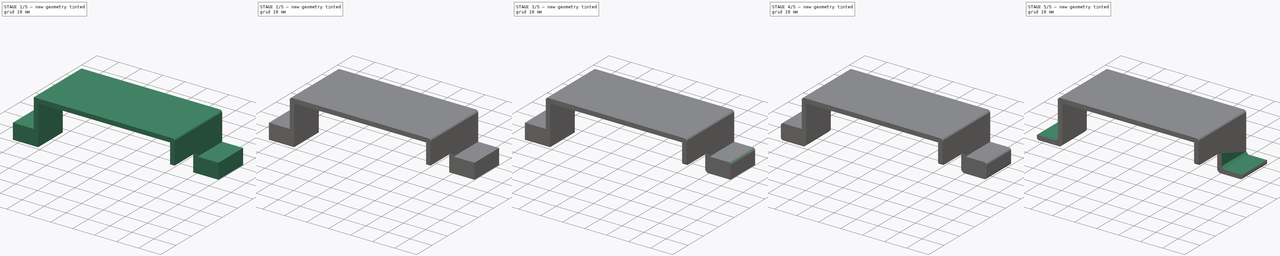
[diagram: build sequence overview — one tinted view per stage of 5, left to right]
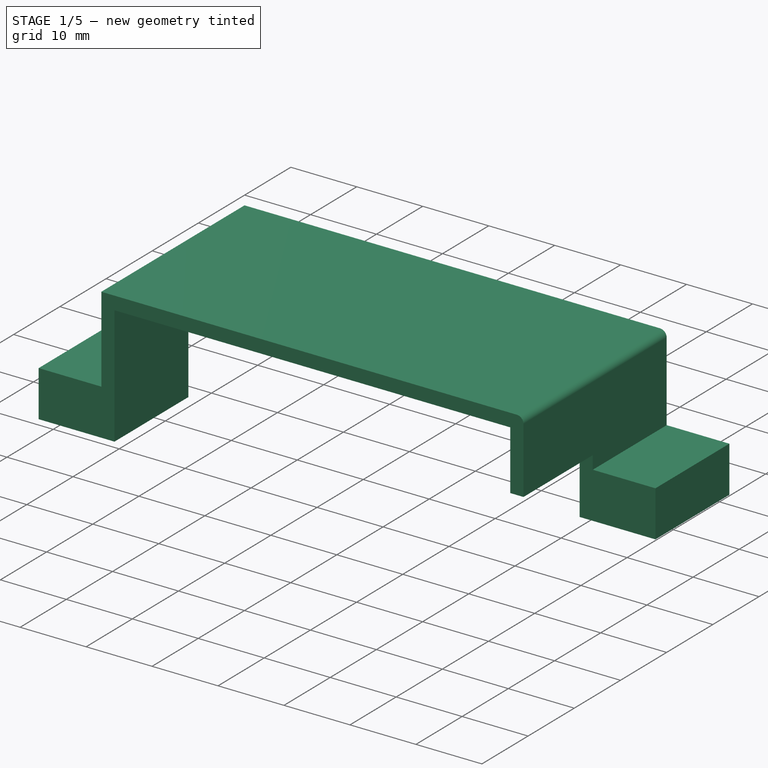
[diagram: stage 1 of 5 — iso view after this stage's code; geometry added in this stage tinted green]
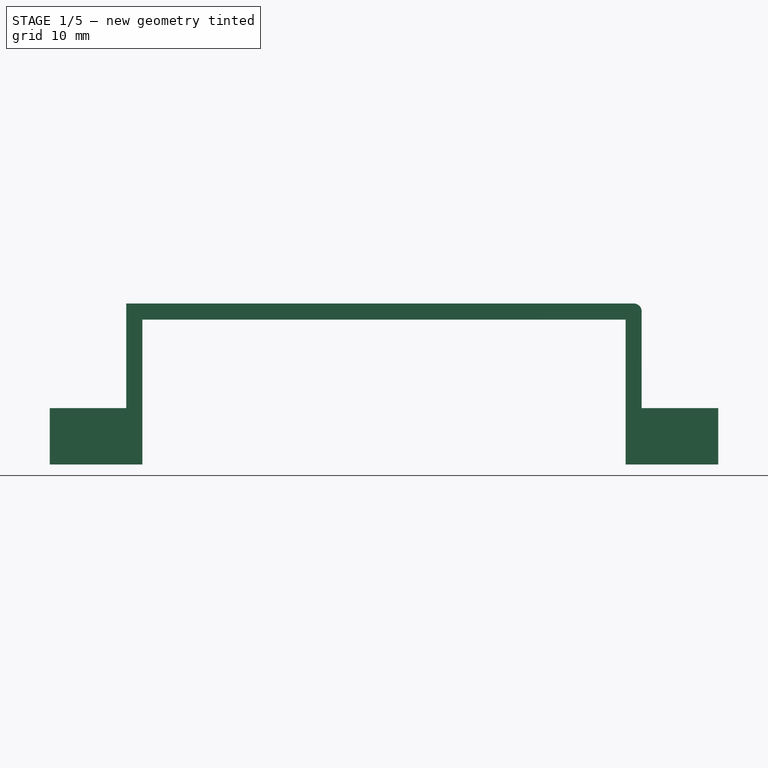
[diagram: stage 1 of 5 — front view after this stage's code; geometry added in this stage tinted green]
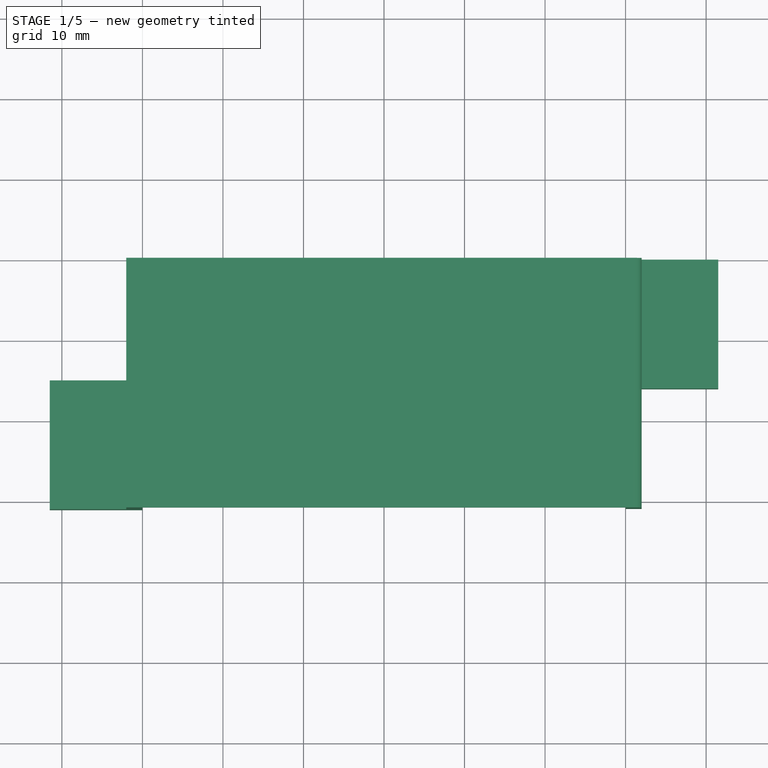
[diagram: stage 1 of 5 — top view after this stage's code; geometry added in this stage tinted green]
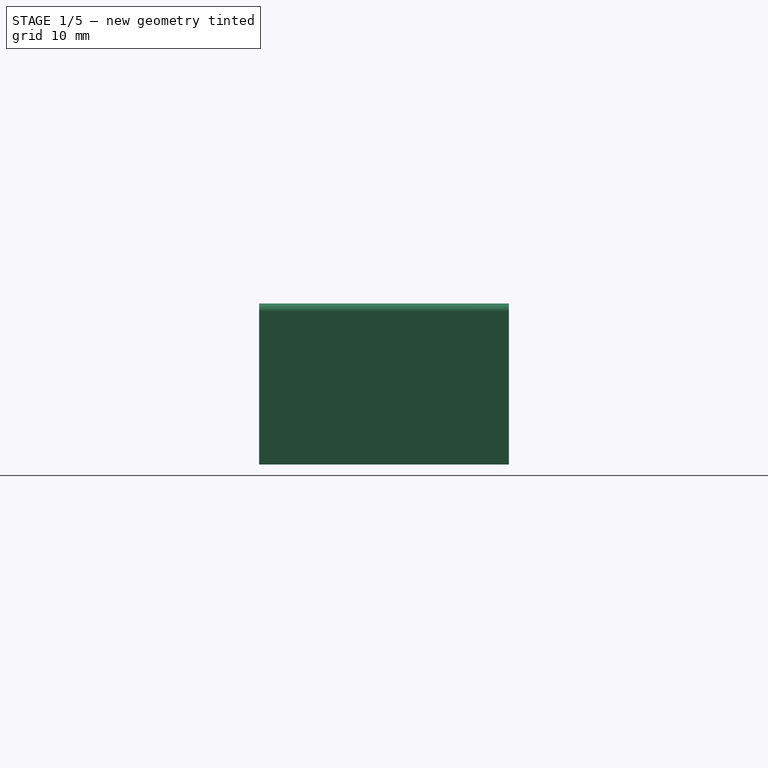
[diagram: stage 1 of 5 — right view after this stage's code; geometry added in this stage tinted green]
FCSTD DOCUMENT  (FreeCAD 1.0R39319 (Git))
Label: Couvercle Convertisseur (club robotique)
License: All rights reserved
LicenseURL: https://en.wikipedia.org/wiki/All_rights_reserved
objects: PartDesign::Fillet×10, Sketcher::SketchObject×5, PartDesign::Pocket×4, PartDesign::Chamfer×4, PartDesign::Pad×1, PartDesign::Body×1
note: 68 computed .brp shape members not serialized (recipe doc carries the construction recipe); baked Part::Feature solids carry a one-line shape summary decoded from their .brp

FEATURE [Sketcher::SketchObject] Sketch
  ArcFitTolerance = 1e-06
  AttachmentSupport = -> [XZ_Plane]
  FullyConstrained = true
  MakeInternals = false
  MapMode = 5
  Placement = pos=(0,0,0) rot=(1,0,0;1.5708rad)
  sketch-geometry (12):
    g0: LineSegment StartX=-32 StartY=20 StartZ=0 EndX=32 EndY=20 EndZ=0
    g1: LineSegment StartX=32 StartY=20 StartZ=0 EndX=32 EndY=7 EndZ=0
    g2: LineSegment StartX=32 StartY=7 StartZ=0 EndX=41.5 EndY=7 EndZ=0
    g3: LineSegment StartX=41.5 StartY=7 StartZ=0 EndX=41.5 EndY=0 EndZ=0
    g4: LineSegment StartX=41.5 StartY=0 StartZ=0 EndX=30 EndY=0 EndZ=0
    g5: LineSegment StartX=30 StartY=0 StartZ=0 EndX=30 EndY=18 EndZ=0
    g6: LineSegment StartX=30 StartY=18 StartZ=0 EndX=-30 EndY=18 EndZ=0
    g7: LineSegment StartX=-30 StartY=18 StartZ=0 EndX=-30 EndY=0 EndZ=0
    g8: LineSegment StartX=-30 StartY=0 StartZ=0 EndX=-41.5 EndY=0 EndZ=0
    g9: LineSegment StartX=-41.5 StartY=0 StartZ=0 EndX=-41.5 EndY=7 EndZ=0
    g10: LineSegment StartX=-41.5 StartY=7 StartZ=0 EndX=-32 EndY=7 EndZ=0
    g11: LineSegment StartX=-32 StartY=7 StartZ=0 EndX=-32 EndY=20 EndZ=0
  constraints (31):
    c: Coincident(g0,g1)
    c: Vertical(g1)
    c: Coincident(g1,g2)
    c: Horizontal(g2)
    c: Coincident(g2,g3)
    c: Vertical(g3)
    c: Coincident(g3,g4)
    c: Horizontal(g4)
    c: Coincident(g4,g5)
    c: Vertical(g5)
    c: Coincident(g5,g6)
    c: Coincident(g6,g7)
    c: PointOnObject(g7,g-1)
    c: Coincident(g7,g8)
    c: PointOnObject(g8,g-1)
    c: Coincident(g8,g9)
    c: Vertical(g9)
    c: Coincident(g9,g10)
    c: Coincident(g10,g11)
    c: Coincident(g11,g0)
    c: DistanceX(g6,g6) = 60
    c: Symmetric(g6,g5,g-2)
    c: Symmetric(g0,g0,g-2)
    c: Distance(g0,g6) = 2
    c: Distance(g1,g5) = 2
    c: DistanceY(g5,g5) = 18
    c: Symmetric(g7,g4,g-2)
    c: DistanceY(g1,g1) = 13
    c: Symmetric(g1,g10,g-2)
    c: Distance(g4,g4) = 11.5
    c: Symmetric(g2,g9,g-2)
FEATURE [PartDesign::Pad] Pad
  Direction = (0,-1,2e-16)
  Length = 31
  Length2 = 10
  Placement = pos=(0,0,0) rot=(1,0,0;1.5708rad)
  Profile = -> Sketch
  ReferenceAxis = -> Sketch [N_Axis]
  Refine = true
  Suppressed = false
  Type = 0
FEATURE [Sketcher::SketchObject] Sketch001
  ArcFitTolerance = 1e-06
  AttachmentSupport = -> [Pad]
  ExternalGeometry = -> [Pad]
  FullyConstrained = false
  MakeInternals = false
  MapMode = 5
  Placement = pos=(0,3e-15,0) rot=(-1,0,0;1.5708rad)
  sketch-geometry (5):
    g0: LineSegment [constr] StartX=-32 StartY=-7 StartZ=0 EndX=-30 EndY=-9 EndZ=0
    g1: LineSegment StartX=-30 StartY=-9 StartZ=0 EndX=-30 EndY=1.82453 EndZ=0
    g2: LineSegment StartX=-30 StartY=1.82453 StartZ=0 EndX=-43.1349 EndY=1.82453 EndZ=0
    g3: LineSegment StartX=-43.1349 StartY=1.82453 StartZ=0 EndX=-43.1349 EndY=-9 EndZ=0
    g4: LineSegment StartX=-43.1349 StartY=-9 StartZ=0 EndX=-30 EndY=-9 EndZ=0
  constraints (11):
    c: Coincident(g0,g-7)
    c: Symmetric(g-6,g-6,g0)
    c: Coincident(g1,g2)
    c: Coincident(g2,g3)
    c: Coincident(g3,g4)
    c: Coincident(g4,g1)
    c: Vertical(g1)
    c: Vertical(g3)
    c: Horizontal(g2)
    c: Horizontal(g4)
    c: Coincident(g1,g0)
FEATURE [PartDesign::Pocket] Pocket
  BaseFeature = -> Pad
  Direction = (0,-1,-2e-16)
  Length = 15
  Length2 = 5
  Placement = pos=(0,0,0) rot=(1,0,0;1.5708rad)
  Profile = -> Sketch001
  ReferenceAxis = -> Sketch001 [N_Axis]
  Refine = true
  Suppressed = false
  Type = 0
FEATURE [Sketcher::SketchObject] Sketch002
  ArcFitTolerance = 1e-06
  AttachmentSupport = -> [Pocket]
  ExternalGeometry = -> [Pocket]
  FullyConstrained = false
  MakeInternals = false
  MapMode = 5
  Placement = pos=(0,-31,0) rot=(1,0,0;1.5708rad)
  sketch-geometry (5):
    g0: LineSegment [constr] StartX=32 StartY=7 StartZ=0 EndX=30 EndY=9 EndZ=0
    g1: LineSegment StartX=30 StartY=9 StartZ=0 EndX=30 EndY=-1.46496 EndZ=0
    g2: LineSegment StartX=30 StartY=-1.46496 StartZ=0 EndX=43.3128 EndY=-1.46496 EndZ=0
    g3: LineSegment StartX=43.3128 StartY=-1.46496 StartZ=0 EndX=43.3128 EndY=9 EndZ=0
    g4: LineSegment StartX=43.3128 StartY=9 StartZ=0 EndX=30 EndY=9 EndZ=0
  constraints (11):
    c: Coincident(g0,g-7)
    c: Symmetric(g-6,g-6,g0)
    c: Coincident(g1,g2)
    c: Coincident(g2,g3)
    c: Coincident(g3,g4)
    c: Coincident(g4,g1)
    c: Vertical(g1)
    c: Vertical(g3)
    c: Horizontal(g2)
    c: Horizontal(g4)
    c: Coincident(g1,g0)
FEATURE [PartDesign::Pocket] Pocket001
  BaseFeature = -> Pocket
  Direction = (0,1,-2e-16)
  Length = 15
  Length2 = 5
  Placement = pos=(0,0,0) rot=(1,0,0;1.5708rad)
  Profile = -> Sketch002
  ReferenceAxis = -> Sketch002 [N_Axis]
  Refine = true
  Suppressed = false
  Type = 0
FEATURE [PartDesign::Fillet] Fillet
  Base = -> Pocket001 [Edge2]
  BaseFeature = -> Pocket001
  Placement = pos=(0,0,0) rot=(1,0,0;1.5708rad)
  Radius = 1
  Refine = true
  SupportTransform = false
  Suppressed = false
  UseAllEdges = false
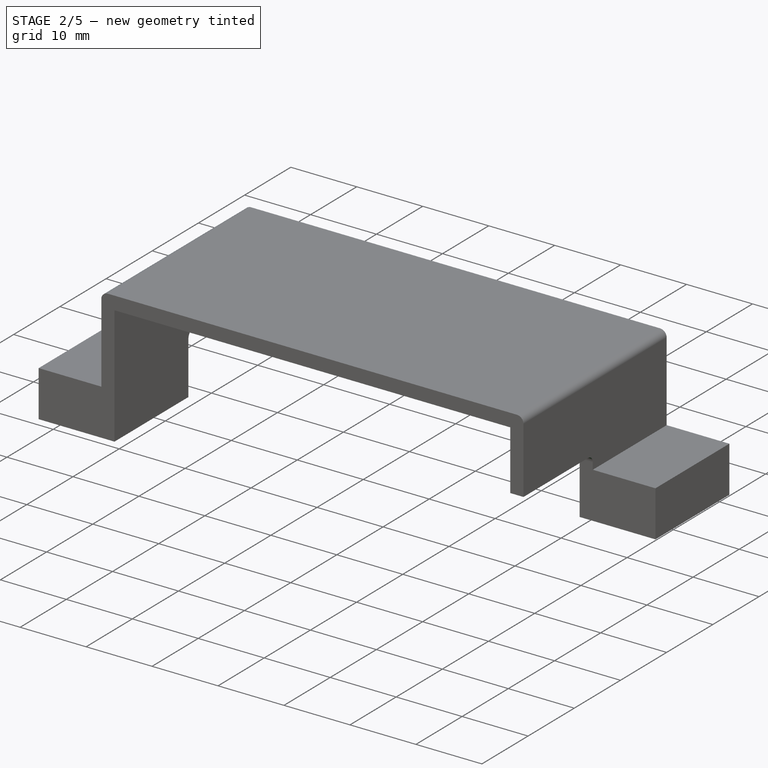
[diagram: stage 2 of 5 — iso view after this stage's code; geometry added in this stage tinted green]
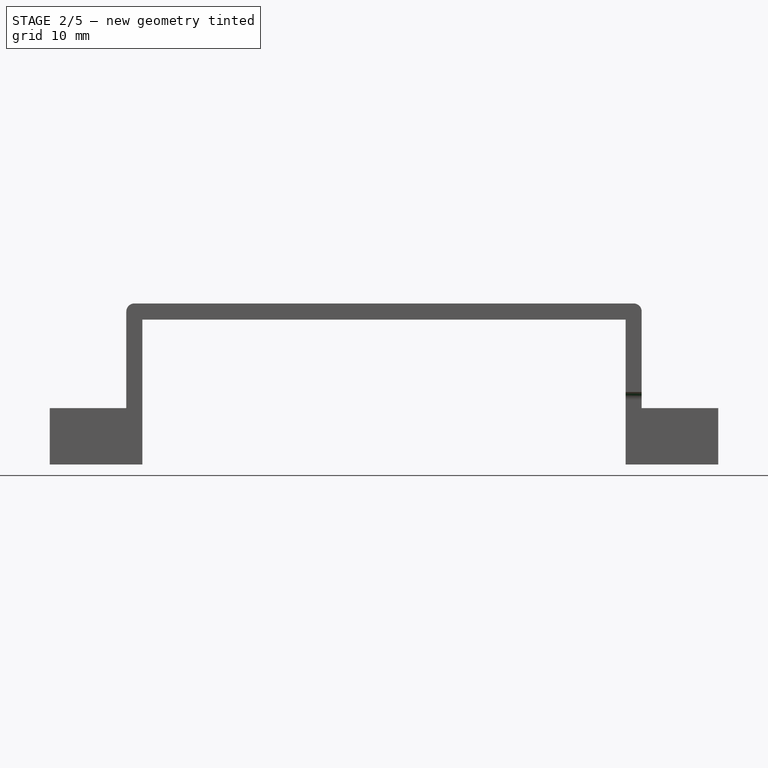
[diagram: stage 2 of 5 — front view after this stage's code; geometry added in this stage tinted green]
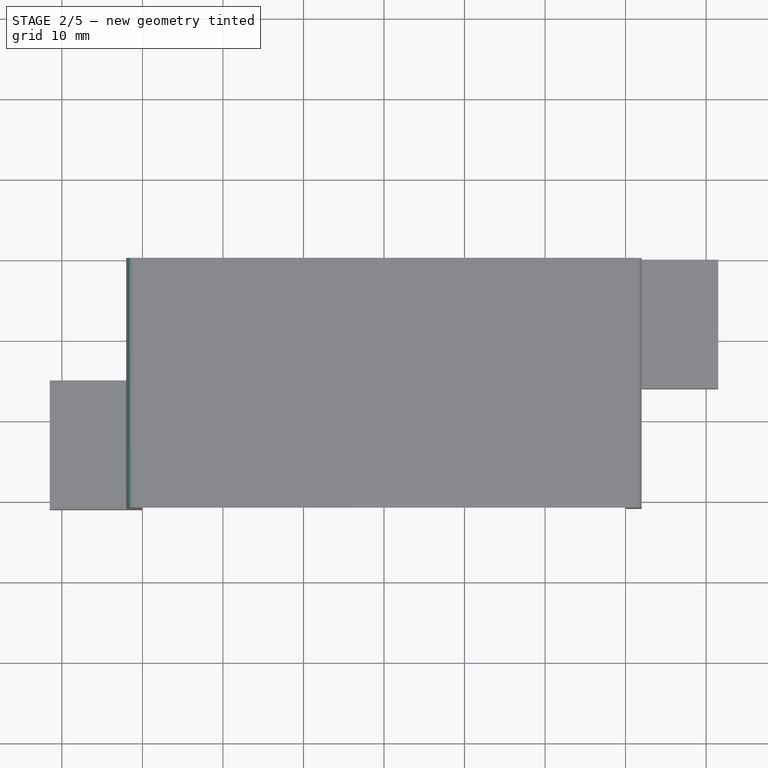
[diagram: stage 2 of 5 — top view after this stage's code; geometry added in this stage tinted green]
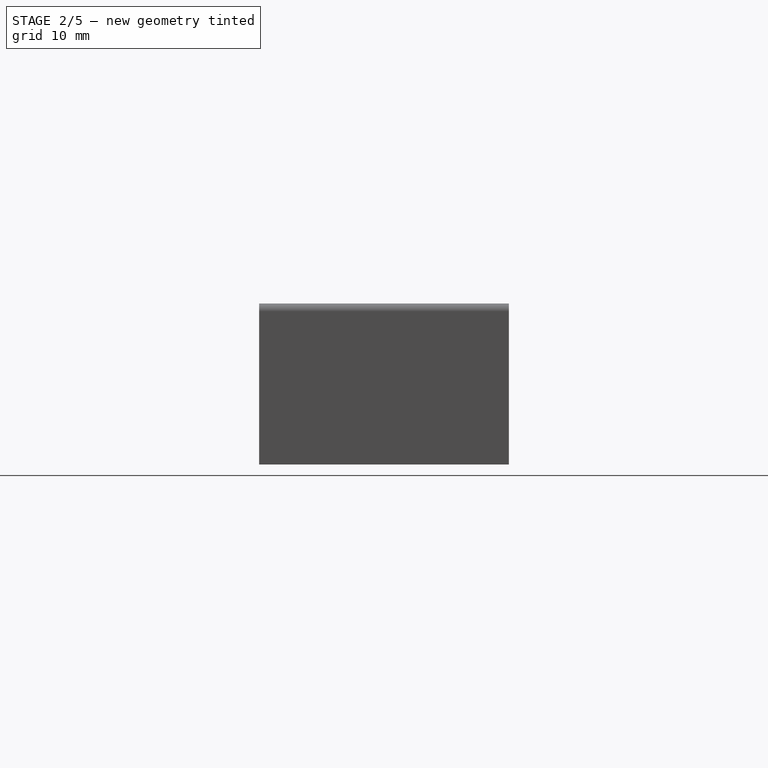
[diagram: stage 2 of 5 — right view after this stage's code; geometry added in this stage tinted green]
FEATURE [PartDesign::Fillet] Fillet001
  Base = -> Fillet [Edge3]
  BaseFeature = -> Fillet
  Placement = pos=(0,0,0) rot=(1,0,0;1.5708rad)
  Radius = 1
  Refine = true
  SupportTransform = false
  Suppressed = false
  UseAllEdges = false
FEATURE [PartDesign::Fillet] Fillet002
  Base = -> Fillet001 [Edge36]
  BaseFeature = -> Fillet001
  Placement = pos=(0,0,0) rot=(1,0,0;1.5708rad)
  Radius = 1
  Refine = true
  SupportTransform = false
  Suppressed = false
  UseAllEdges = false
FEATURE [PartDesign::Fillet] Fillet003
  Base = -> Fillet002 [Edge10]
  BaseFeature = -> Fillet002
  Placement = pos=(0,0,0) rot=(1,0,0;1.5708rad)
  Radius = 1
  Refine = true
  SupportTransform = false
  Suppressed = false
  UseAllEdges = false
FEATURE [PartDesign::Fillet] Fillet004
  Base = -> Fillet003 [Edge60]
  BaseFeature = -> Fillet003
  Placement = pos=(0,0,0) rot=(1,0,0;1.5708rad)
  Radius = 1
  Refine = true
  SupportTransform = false
  Suppressed = false
  UseAllEdges = false
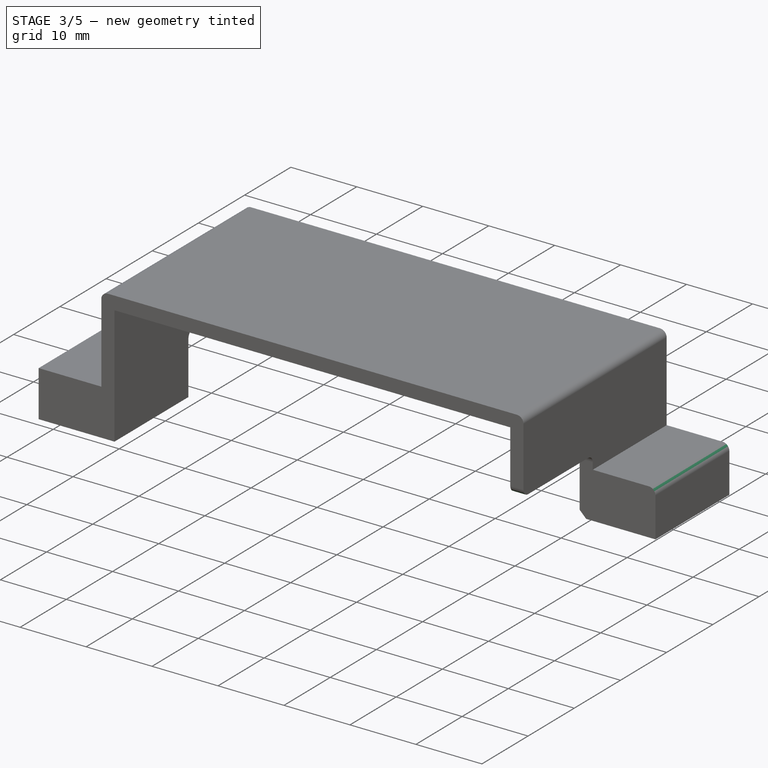
[diagram: stage 3 of 5 — iso view after this stage's code; geometry added in this stage tinted green]
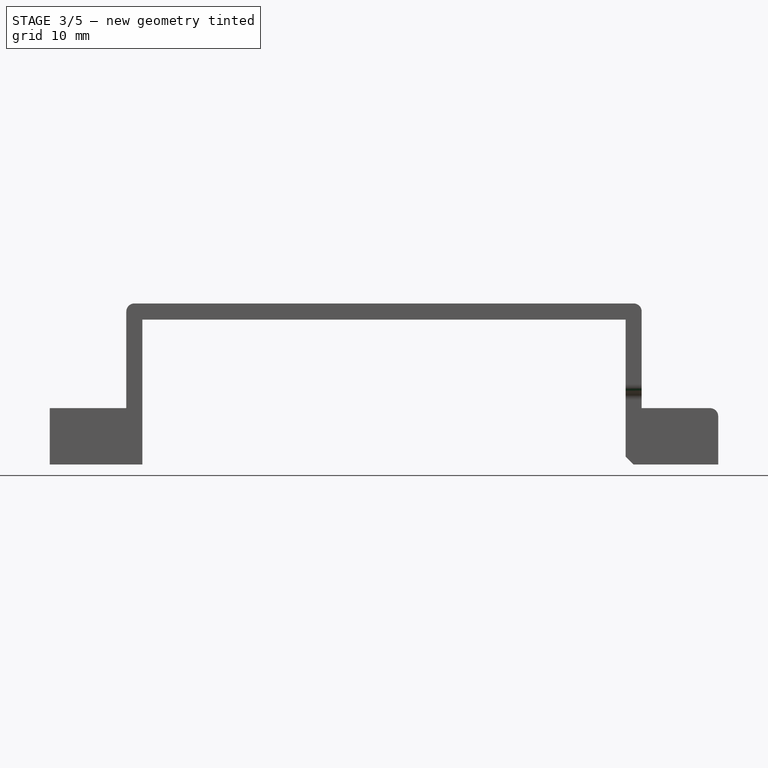
[diagram: stage 3 of 5 — front view after this stage's code; geometry added in this stage tinted green]
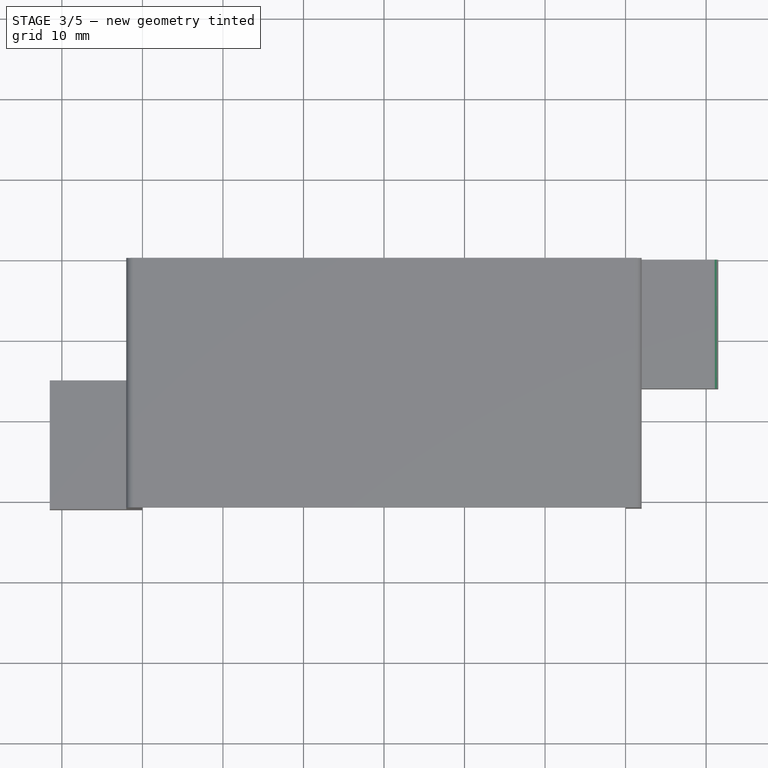
[diagram: stage 3 of 5 — top view after this stage's code; geometry added in this stage tinted green]
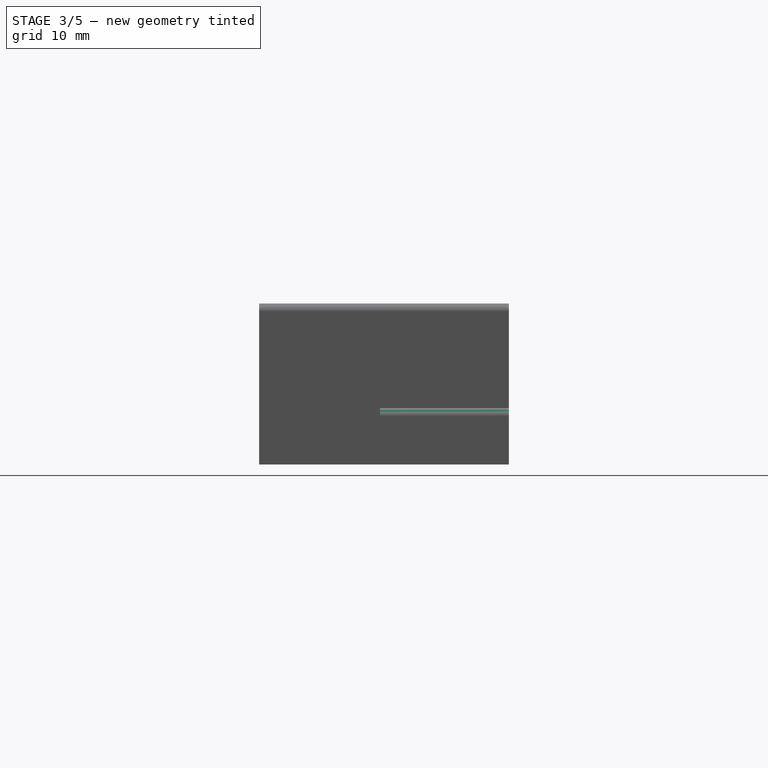
[diagram: stage 3 of 5 — right view after this stage's code; geometry added in this stage tinted green]
FEATURE [PartDesign::Fillet] Fillet005
  Base = -> Fillet004 [Edge9]
  BaseFeature = -> Fillet004
  Placement = pos=(0,0,0) rot=(1,0,0;1.5708rad)
  Radius = 1
  Refine = true
  SupportTransform = false
  Suppressed = false
  UseAllEdges = false
FEATURE [PartDesign::Fillet] Fillet006
  Base = -> Fillet005 [Edge63]
  BaseFeature = -> Fillet005
  Placement = pos=(0,0,0) rot=(1,0,0;1.5708rad)
  Radius = 1
  Refine = true
  SupportTransform = false
  Suppressed = false
  UseAllEdges = false
FEATURE [PartDesign::Chamfer] Chamfer
  Angle = 45
  Base = -> Fillet006 [Edge14]
  BaseFeature = -> Fillet006
  ChamferType = 0
  FlipDirection = false
  Placement = pos=(0,0,0) rot=(1,0,0;1.5708rad)
  Refine = true
  Size = 1
  Size2 = 1
  SupportTransform = false
  Suppressed = false
  UseAllEdges = false
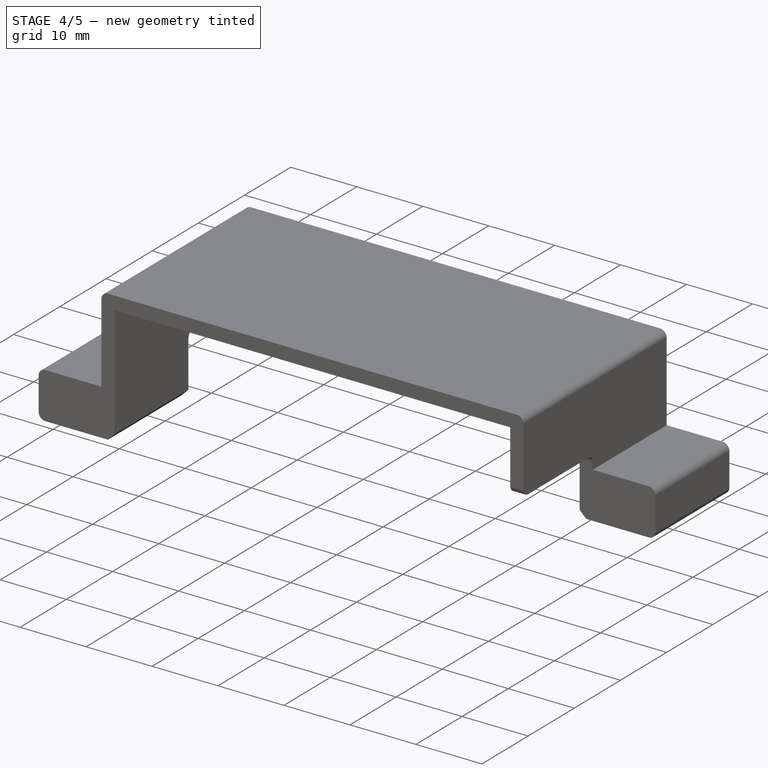
[diagram: stage 4 of 5 — iso view after this stage's code; geometry added in this stage tinted green]
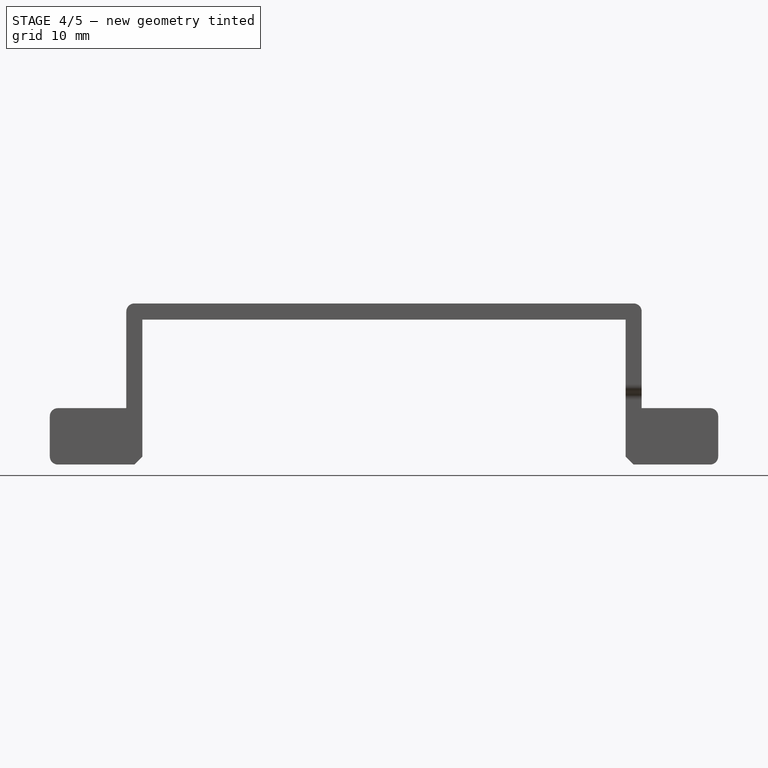
[diagram: stage 4 of 5 — front view after this stage's code; geometry added in this stage tinted green]
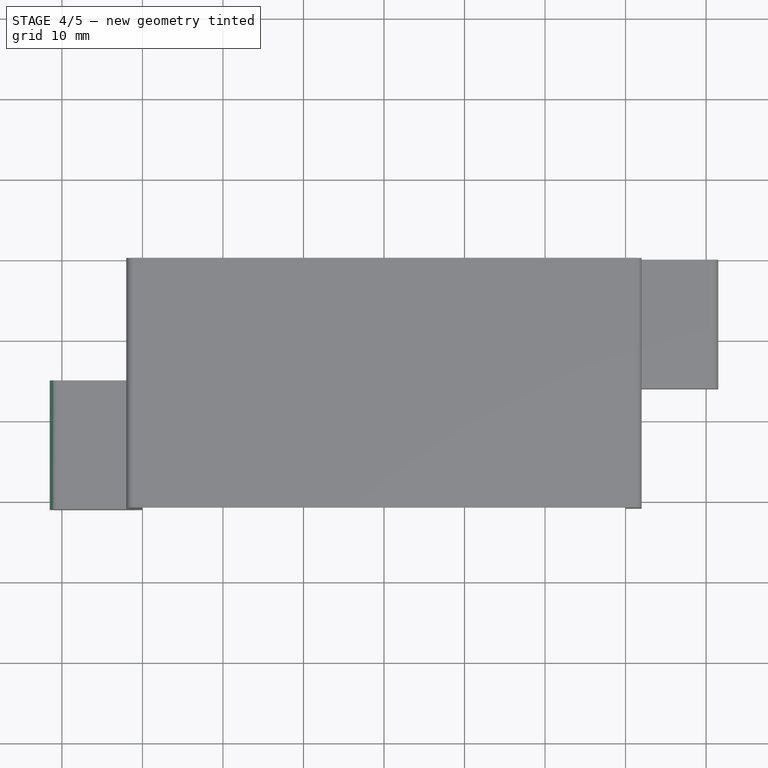
[diagram: stage 4 of 5 — top view after this stage's code; geometry added in this stage tinted green]
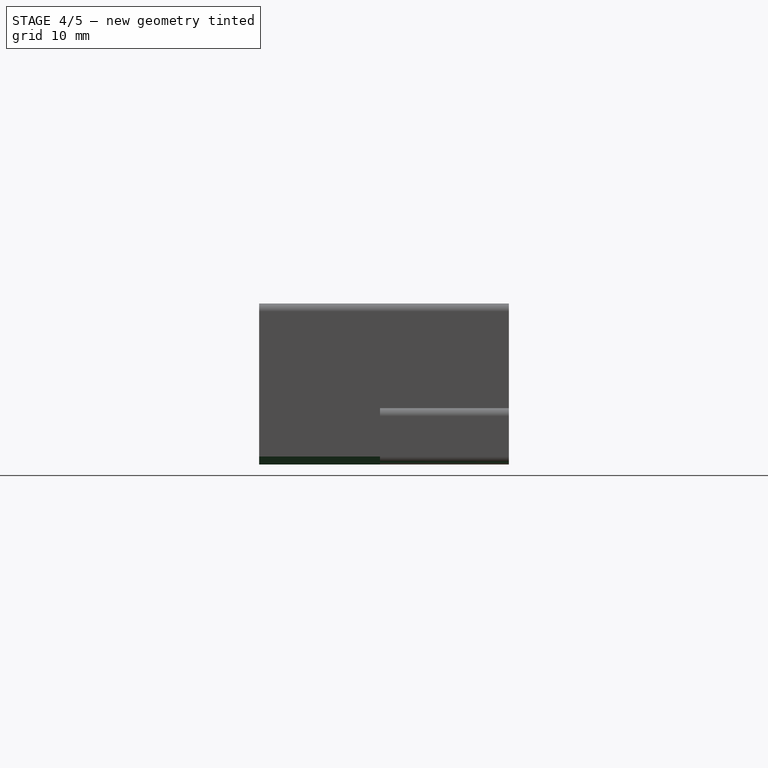
[diagram: stage 4 of 5 — right view after this stage's code; geometry added in this stage tinted green]
FEATURE [PartDesign::Fillet] Fillet007
  Base = -> Chamfer [Edge11]
  BaseFeature = -> Chamfer
  Placement = pos=(0,0,0) rot=(1,0,0;1.5708rad)
  Radius = 1
  Refine = true
  SupportTransform = false
  Suppressed = false
  UseAllEdges = false
FEATURE [PartDesign::Fillet] Fillet008
  Base = -> Fillet007 [Edge72]
  BaseFeature = -> Fillet007
  Placement = pos=(0,0,0) rot=(1,0,0;1.5708rad)
  Radius = 1
  Refine = true
  SupportTransform = false
  Suppressed = false
  UseAllEdges = false
FEATURE [PartDesign::Fillet] Fillet009
  Base = -> Fillet008 [Edge26]
  BaseFeature = -> Fillet008
  Placement = pos=(0,0,0) rot=(1,0,0;1.5708rad)
  Radius = 1
  Refine = true
  SupportTransform = false
  Suppressed = false
  UseAllEdges = false
FEATURE [PartDesign::Chamfer] Chamfer001
  Angle = 45
  Base = -> Fillet009 [Edge23]
  BaseFeature = -> Fillet009
  ChamferType = 0
  FlipDirection = false
  Placement = pos=(0,0,0) rot=(1,0,0;1.5708rad)
  Refine = true
  Size = 1
  Size2 = 1
  SupportTransform = false
  Suppressed = false
  UseAllEdges = false
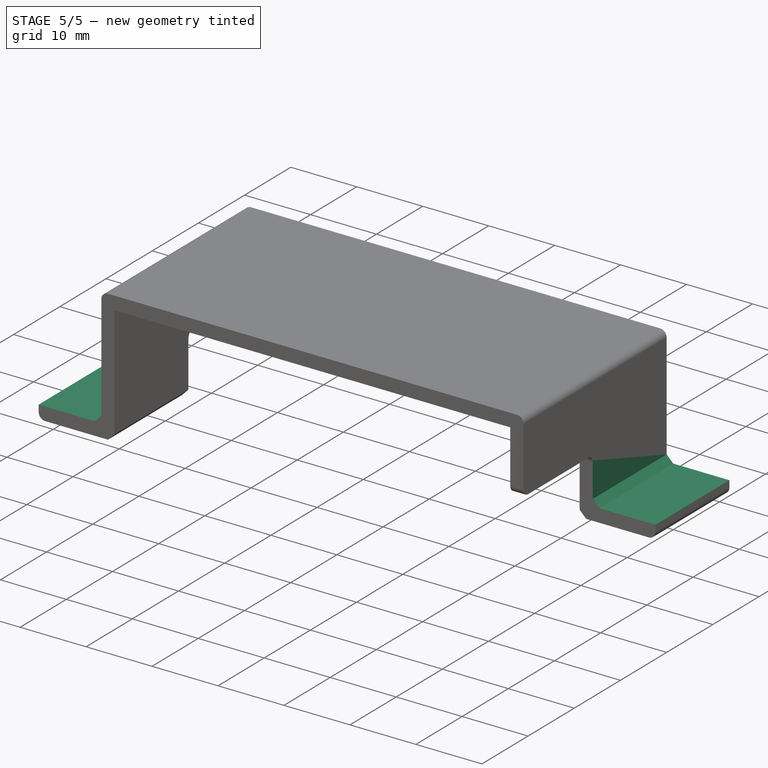
[diagram: stage 5 of 5 — iso view after this stage's code; geometry added in this stage tinted green]
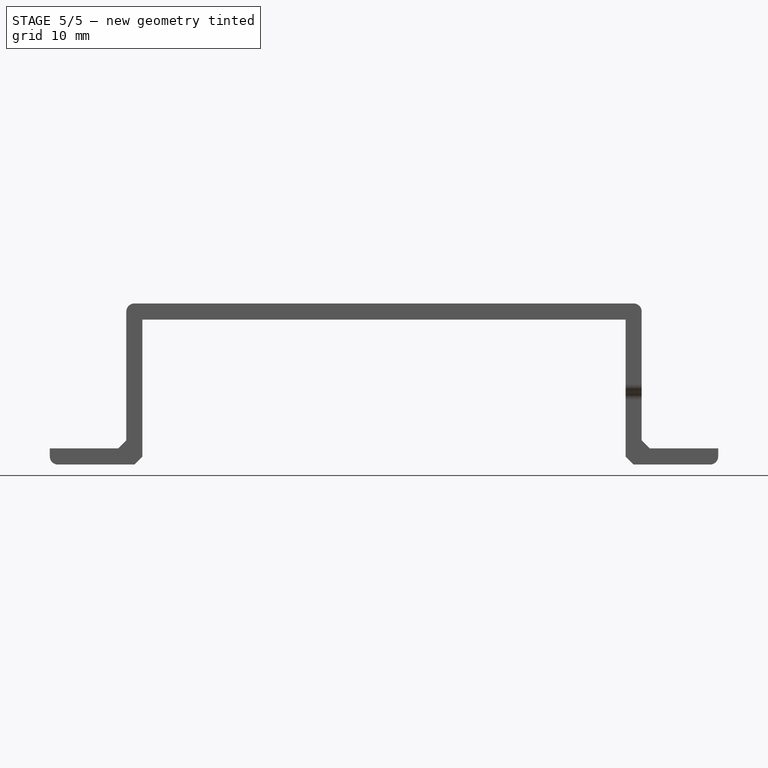
[diagram: stage 5 of 5 — front view after this stage's code; geometry added in this stage tinted green]
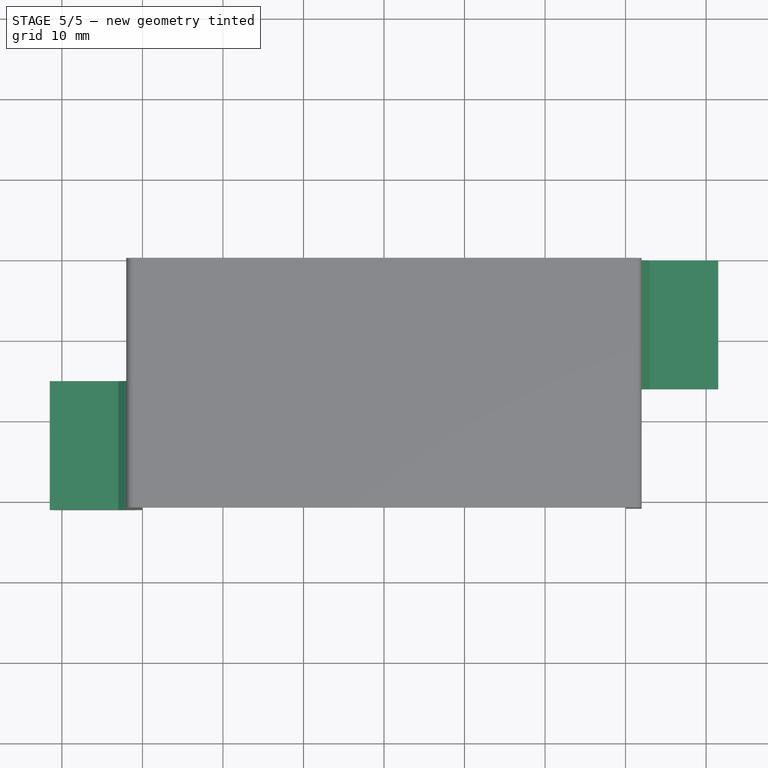
[diagram: stage 5 of 5 — top view after this stage's code; geometry added in this stage tinted green]
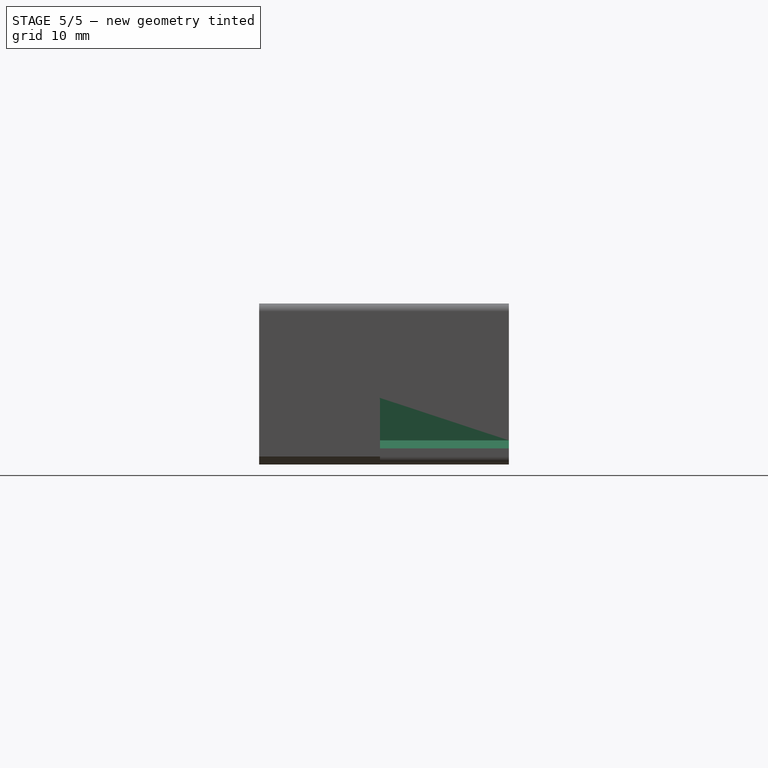
[diagram: stage 5 of 5 — right view after this stage's code; geometry added in this stage tinted green]
FEATURE [Sketcher::SketchObject] Sketch003
  ArcFitTolerance = 1e-06
  AttachmentSupport = -> [Chamfer001]
  ExternalGeometry = -> [Chamfer001]
  FullyConstrained = false
  MakeInternals = false
  MapMode = 5
  Placement = pos=(0,3e-15,0) rot=(-1,0,0;1.5708rad)
  sketch-geometry (5):
    g0: LineSegment [constr] StartX=32 StartY=-7 StartZ=0 EndX=32 EndY=-2 EndZ=0
    g1: LineSegment StartX=32 StartY=-2 StartZ=0 EndX=32 EndY=-8.35841 EndZ=0
    g2: LineSegment StartX=32 StartY=-8.35841 StartZ=0 EndX=42.9309 EndY=-8.35841 EndZ=0
    g3: LineSegment StartX=42.9309 StartY=-8.35841 StartZ=0 EndX=42.9309 EndY=-2 EndZ=0
    g4: LineSegment StartX=42.9309 StartY=-2 StartZ=0 EndX=32 EndY=-2 EndZ=0
  constraints (12):
    c: Distance(g0) = 5
    c: Coincident(g0,g-10)
    c: Vertical(g0)
    c: Coincident(g1,g2)
    c: Coincident(g2,g3)
    c: Coincident(g3,g4)
    c: Coincident(g4,g1)
    c: Vertical(g1)
    c: Vertical(g3)
    c: Horizontal(g2)
    c: Horizontal(g4)
    c: Coincident(g1,g0)
FEATURE [PartDesign::Pocket] Pocket002
  BaseFeature = -> Chamfer001
  Direction = (0,-1,-2e-16)
  Length = 16
  Length2 = 5
  Placement = pos=(0,0,0) rot=(1,0,0;1.5708rad)
  Profile = -> Sketch003
  ReferenceAxis = -> Sketch003 [N_Axis]
  Refine = true
  Suppressed = false
  Type = 0
FEATURE [Sketcher::SketchObject] Sketch004
  ArcFitTolerance = 1e-06
  AttachmentSupport = -> [Pocket002]
  ExternalGeometry = -> [Pocket002]
  FullyConstrained = false
  MakeInternals = false
  MapMode = 5
  Placement = pos=(0,-31,0) rot=(1,0,0;1.5708rad)
  sketch-geometry (5):
    g0: LineSegment [constr] StartX=-32 StartY=7 StartZ=0 EndX=-32 EndY=2 EndZ=0
    g1: LineSegment StartX=-32 StartY=2 StartZ=0 EndX=-32 EndY=8.2667 EndZ=0
    g2: LineSegment StartX=-32 StartY=8.2667 StartZ=0 EndX=-43.2219 EndY=8.2667 EndZ=0
    g3: LineSegment StartX=-43.2219 StartY=8.2667 StartZ=0 EndX=-43.2219 EndY=2 EndZ=0
    g4: LineSegment StartX=-43.2219 StartY=2 StartZ=0 EndX=-32 EndY=2 EndZ=0
  constraints (12):
    c: Distance(g0) = 5
    c: Coincident(g0,g-4)
    c: Vertical(g0)
    c: Coincident(g1,g2)
    c: Coincident(g2,g3)
    c: Coincident(g3,g4)
    c: Coincident(g4,g1)
    c: Vertical(g1)
    c: Vertical(g3)
    c: Horizontal(g2)
    c: Horizontal(g4)
    c: Coincident(g1,g0)
FEATURE [PartDesign::Pocket] Pocket003
  BaseFeature = -> Pocket002
  Direction = (0,1,-2e-16)
  Length = 17
  Length2 = 5
  Placement = pos=(0,0,0) rot=(1,0,0;1.5708rad)
  Profile = -> Sketch004
  ReferenceAxis = -> Sketch004 [N_Axis]
  Refine = true
  Suppressed = false
  Type = 0
FEATURE [PartDesign::Chamfer] Chamfer002
  Angle = 45
  Base = -> Pocket003 [Edge46]
  BaseFeature = -> Pocket003
  ChamferType = 0
  FlipDirection = false
  Placement = pos=(0,0,0) rot=(1,0,0;1.5708rad)
  Refine = true
  Size = 1
  Size2 = 1
  SupportTransform = false
  Suppressed = false
  UseAllEdges = false
FEATURE [PartDesign::Chamfer] Chamfer003
  Angle = 45
  Base = -> Chamfer002 [Edge41]
  BaseFeature = -> Chamfer002
  ChamferType = 0
  FlipDirection = false
  Placement = pos=(0,0,0) rot=(1,0,0;1.5708rad)
  Refine = true
  Size = 1
  Size2 = 1
  SupportTransform = false
  Suppressed = false
  UseAllEdges = false
FEATURE [PartDesign::Body] Body
  AllowCompound = false
  Group = -> [Sketch,Pad,Sketch001,Pocket,Sketch002,Pocket001,Fillet,Fillet001,Fillet002,Fillet003,Fillet004,Fillet005,Fillet006,Chamfer,Fillet007,Fillet008,Fillet009,Chamfer001,Sketch003,Pocket002,Sketch004,Pocket003,Chamfer002,Chamfer003]
  Origin = -> Origin
  Tip = -> Chamfer003
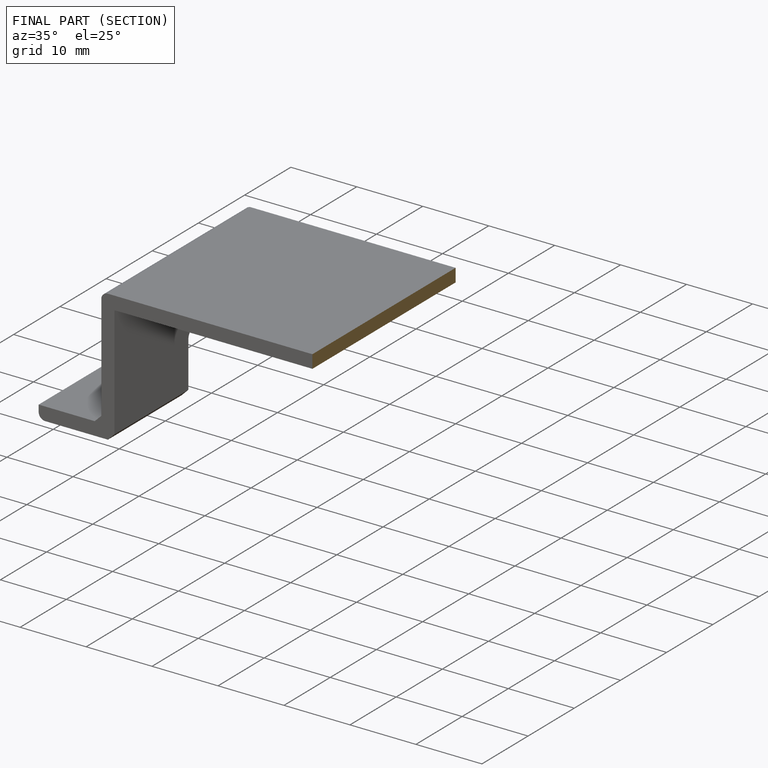
[diagram: finished part — half-section view (interior)]
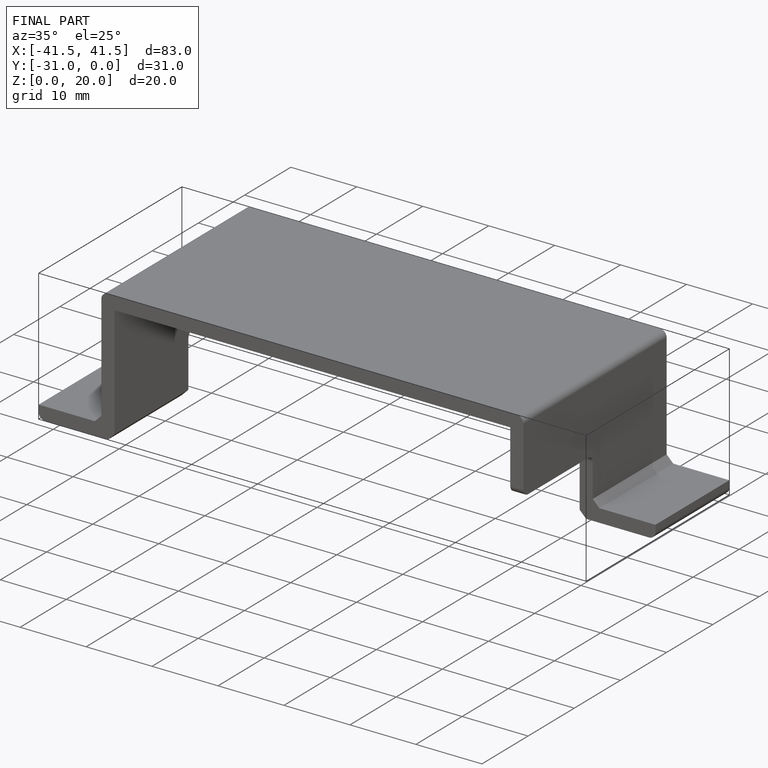
[diagram: finished part — iso view with bounding-box wireframe]
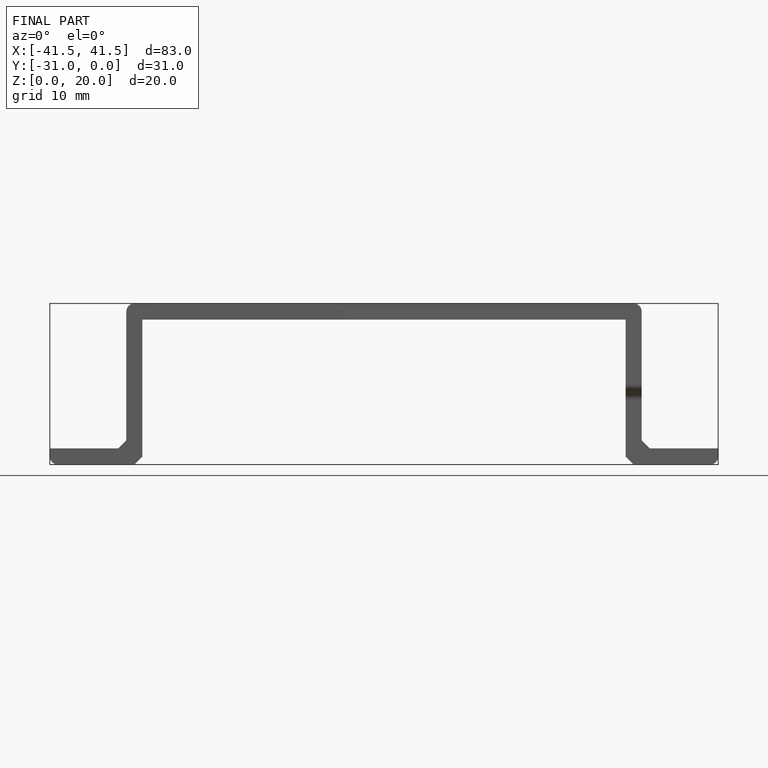
[diagram: finished part — front view with bounding-box wireframe]
